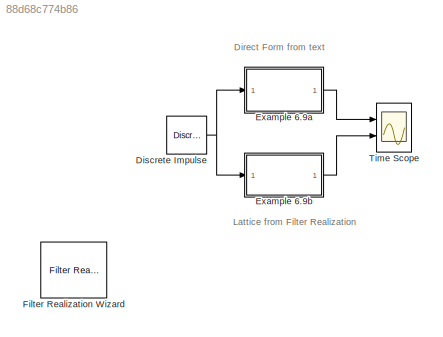
MODEL slx_88d68c774b86
KIND model
BLOCK [Reference] Discrete Impulse  REF=dspsrcs4/Discrete 
Impulse
  Delay = 0
  FrameSample = 1
  LastOutDataTypeStr = double
  OutDataTypeStr = double
  Ports = [0, 1]
  SampleTime = 1
  SourceBlock = dspsrcs4/Discrete \nImpulse
  SourceType = Discrete Impulse
  additionalParams = off
  allowOverrides = on
  dataType = double
  fracBitsMode = Best precision
  isSigned = on
  numFracBits = 15
  udDataType = sfix(16)
  wordLen = 16
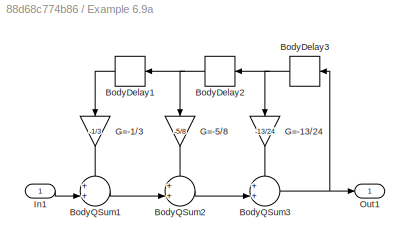
BLOCK [SubSystem] Example 6.9a
  Ports = [1, 1]
  RequestExecContextInheritance = off
BLOCK [Delay] Example 6.9a/BodyDelay1
  DelayLength = 1
  InputPortMap = u0
  InputProcessing = Inherited
  Ports = [1, 1]
BLOCK [Delay] Example 6.9a/BodyDelay2
  DelayLength = 1
  InputPortMap = u0
  InputProcessing = Inherited
  Ports = [1, 1]
BLOCK [Delay] Example 6.9a/BodyDelay3
  DelayLength = 1
  InputPortMap = u0
  InputProcessing = Inherited
  Ports = [1, 1]
BLOCK [Sum] Example 6.9a/BodyQSum1
  IconShape = round
  InputSameDT = off
  Inputs = ++|
  Ports = [2, 1]
  RndMeth = Nearest
BLOCK [Sum] Example 6.9a/BodyQSum2
  IconShape = round
  InputSameDT = off
  Inputs = ++|
  Ports = [2, 1]
  RndMeth = Nearest
BLOCK [Sum] Example 6.9a/BodyQSum3
  IconShape = round
  InputSameDT = off
  Inputs = ++|
  Ports = [2, 1]
  RndMeth = Nearest
BLOCK [Gain] Example 6.9a/G=-1//3
  Gain = -1/3
  ParamDataTypeStr = float('double')
  RndMeth = Nearest
BLOCK [Gain] Example 6.9a/G=-13//24
  Gain = -13/24
  ParamDataTypeStr = float('double')
  RndMeth = Nearest
BLOCK [Gain] Example 6.9a/G=-5//8
  Gain = -5/8
  ParamDataTypeStr = float('double')
  RndMeth = Nearest
BLOCK [Inport] Example 6.9a/In1
  IconDisplay = Port number
BLOCK [Outport] Example 6.9a/Out1
  IconDisplay = Port number
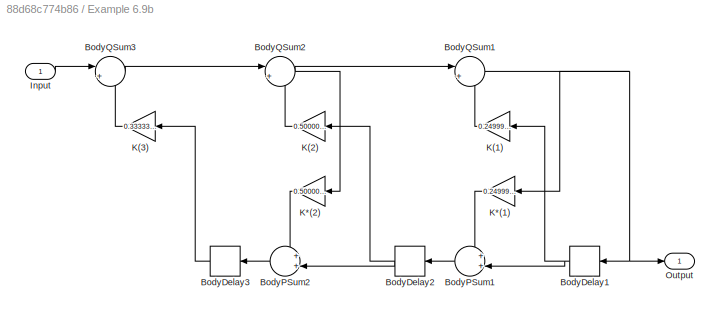
BLOCK [SubSystem] Example 6.9b
  ErrorFcn = dspFilterRealizedInBasicElemsAlgLoopErrFcnCallback
  Ports = [1, 1]
  RequestExecContextInheritance = off
  Tag = FilterWizardSubSystem
  UserDataPersistent = on
BLOCK [Delay] Example 6.9b/BodyDelay1
  DelayLength = 1
  InputPortMap = u0
  InputProcessing = Inherited
  Ports = [1, 1]
BLOCK [Delay] Example 6.9b/BodyDelay2
  DelayLength = 1
  InputPortMap = u0
  InputProcessing = Inherited
  Ports = [1, 1]
BLOCK [Delay] Example 6.9b/BodyDelay3
  DelayLength = 1
  InputPortMap = u0
  InputProcessing = Inherited
  Ports = [1, 1]
BLOCK [Sum] Example 6.9b/BodyPSum1
  IconShape = round
  InputSameDT = off
  Inputs = ++|
  Ports = [2, 1]
  RndMeth = Nearest
BLOCK [Sum] Example 6.9b/BodyPSum2
  IconShape = round
  InputSameDT = off
  Inputs = ++|
  Ports = [2, 1]
  RndMeth = Nearest
BLOCK [Sum] Example 6.9b/BodyQSum1
  IconShape = round
  InputSameDT = off
  Inputs = |+-
  Ports = [2, 1]
  RndMeth = Nearest
BLOCK [Sum] Example 6.9b/BodyQSum2
  IconShape = round
  InputSameDT = off
  Inputs = |+-
  Ports = [2, 1]
  RndMeth = Nearest
BLOCK [Sum] Example 6.9b/BodyQSum3
  IconShape = round
  InputSameDT = off
  Inputs = |+-
  Ports = [2, 1]
  RndMeth = Nearest
BLOCK [Inport] Example 6.9b/Input
  IconDisplay = Port number
BLOCK [Gain] Example 6.9b/K(1)
  Gain = 0.24999999999999997
  ParamDataTypeStr = float('double')
  RndMeth = Nearest
BLOCK [Gain] Example 6.9b/K(2)
  Gain = 0.50000000000000011
  ParamDataTypeStr = float('double')
  RndMeth = Nearest
BLOCK [Gain] Example 6.9b/K(3)
  Gain = 0.33333333333333331
  ParamDataTypeStr = float('double')
  RndMeth = Nearest
BLOCK [Gain] Example 6.9b/K*(1)
  Gain = 0.24999999999999997
  ParamDataTypeStr = float('double')
  RndMeth = Nearest
BLOCK [Gain] Example 6.9b/K*(2)
  Gain = 0.50000000000000011
  ParamDataTypeStr = float('double')
  RndMeth = Nearest
BLOCK [Outport] Example 6.9b/Output
  IconDisplay = Port number
BLOCK [Reference] Filter Realization Wizard  REF=dsparch4/Filter
Realization
Wizard
  Ports = []
  SourceBlock = dsparch4/Filter\nRealization\nWizard
  SourceType = Filter Realization Wizard
BLOCK [Scope] Time Scope
  DataFormat = Structure
  Floating = off
  NumInputPorts = 2
  Ports = [2]
  SampleTime = 0
  ShowLegends = off
  YMax = 2~2
  YMin = -2~-2
ANNOTATION (root): Direct Form from text
ANNOTATION (root): Lattice from Filter Realization
NET Discrete Impulse:1 -> Example 6.9a:1, Example 6.9b:1
LINE Example 6.9a/BodyDelay1:1 -> Example 6.9a/G=-1//3:1
NET Example 6.9a/BodyDelay2:1 -> Example 6.9a/BodyDelay1:1, Example 6.9a/G=-5//8:1
NET Example 6.9a/BodyDelay3:1 -> Example 6.9a/BodyDelay2:1, Example 6.9a/G=-13//24:1
LINE Example 6.9a/BodyQSum1:1 -> Example 6.9a/BodyQSum2:2
LINE Example 6.9a/BodyQSum2:1 -> Example 6.9a/BodyQSum3:2
NET Example 6.9a/BodyQSum3:1 -> Example 6.9a/BodyDelay3:1, Example 6.9a/Out1:1
LINE Example 6.9a/G=-1//3:1 -> Example 6.9a/BodyQSum1:1
LINE Example 6.9a/G=-13//24:1 -> Example 6.9a/BodyQSum3:1
LINE Example 6.9a/G=-5//8:1 -> Example 6.9a/BodyQSum2:1
LINE Example 6.9a/In1:1 -> Example 6.9a/BodyQSum1:2
LINE Example 6.9a:1 -> Time Scope:1
NET Example 6.9b/BodyDelay1:1 -> Example 6.9b/BodyPSum1:2, Example 6.9b/K(1):1
NET Example 6.9b/BodyDelay2:1 -> Example 6.9b/BodyPSum2:2, Example 6.9b/K(2):1
LINE Example 6.9b/BodyDelay3:1 -> Example 6.9b/K(3):1
LINE Example 6.9b/BodyPSum1:1 -> Example 6.9b/BodyDelay2:1
LINE Example 6.9b/BodyPSum2:1 -> Example 6.9b/BodyDelay3:1
NET Example 6.9b/BodyQSum1:1 -> Example 6.9b/BodyDelay1:1, Example 6.9b/K*(1):1, Example 6.9b/Output:1
NET Example 6.9b/BodyQSum2:1 -> Example 6.9b/BodyQSum1:1, Example 6.9b/K*(2):1
LINE Example 6.9b/BodyQSum3:1 -> Example 6.9b/BodyQSum2:1
LINE Example 6.9b/Input:1 -> Example 6.9b/BodyQSum3:1
LINE Example 6.9b/K(1):1 -> Example 6.9b/BodyQSum1:2
LINE Example 6.9b/K(2):1 -> Example 6.9b/BodyQSum2:2
LINE Example 6.9b/K(3):1 -> Example 6.9b/BodyQSum3:2
LINE Example 6.9b/K*(1):1 -> Example 6.9b/BodyPSum1:1
LINE Example 6.9b/K*(2):1 -> Example 6.9b/BodyPSum2:1
LINE Example 6.9b:1 -> Time Scope:2
note: NET lines group one-source signal fan-out (src -> all destinations, sorted); 1:1 wires keep LINE
